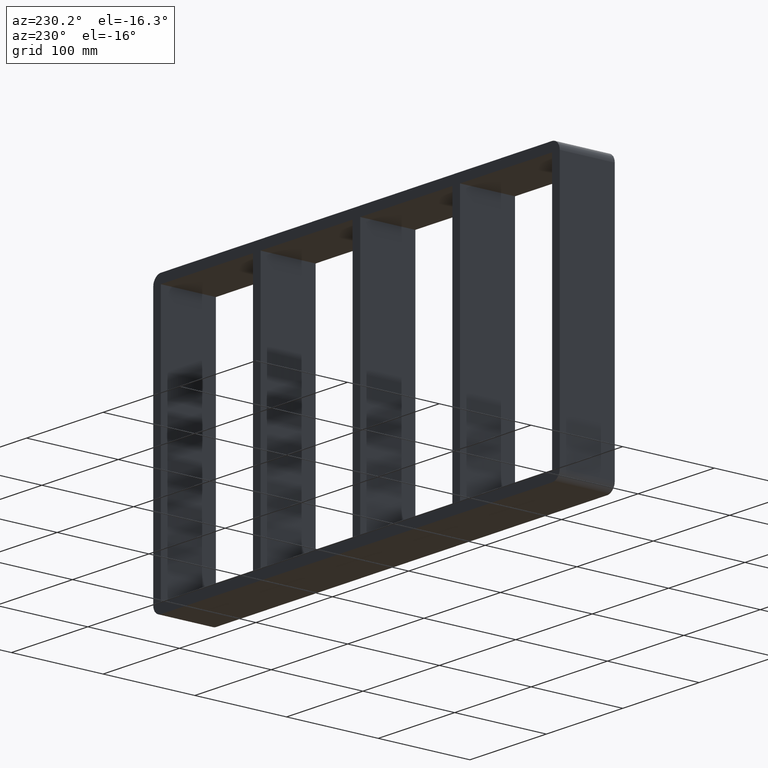
[diagram: clean part render]
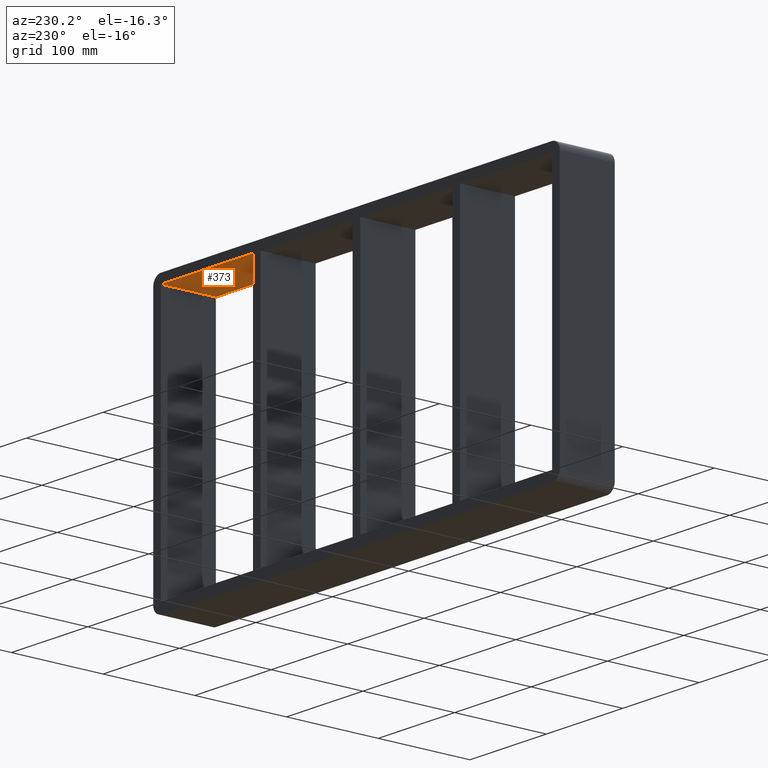
[diagram: same view with one face highlighted and labeled with its STEP entity id]
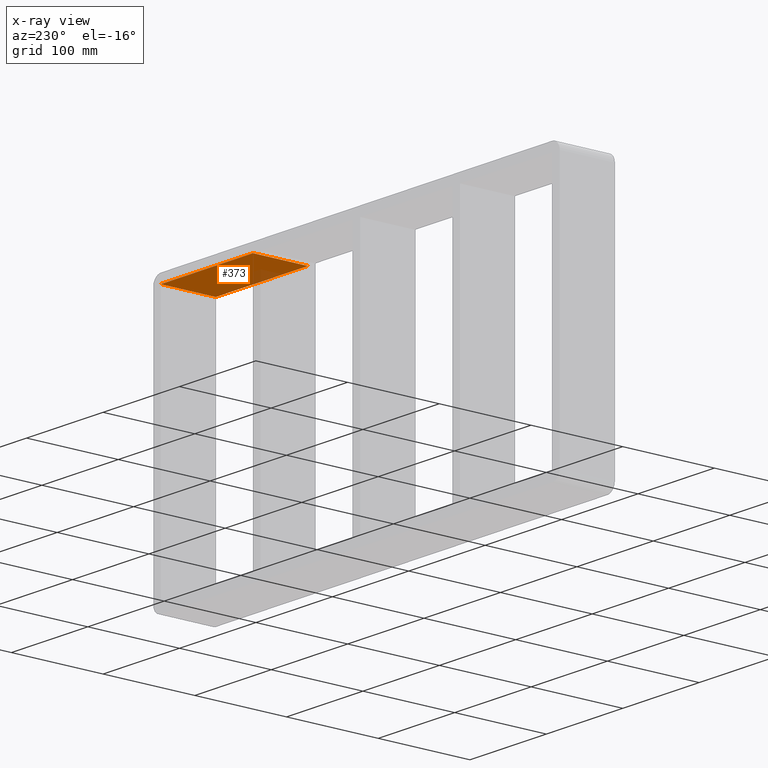
[diagram: x-ray of the same camera — body ghosted, the highlighted face saturated]
A machine part, auxiliary view. The second image highlights one B-rep face of the part: STEP entity #373.
The next image is the same camera in x-ray: the body ghosted, the highlighted face saturated — about 8% of this face is hidden behind the body in this view.
In plain terms, the highlighted planar face has unit normal (0, 0, 1).
Its self-contained STEP definition (entity closure, byte-faithful):
#113=CARTESIAN_POINT('',(135.50000000000728,-3.0,139.00000000000003));
#114=VERTEX_POINT('',#113);
#131=CARTESIAN_POINT('',(135.50000000000728,57.0,139.00000000000003));
#132=VERTEX_POINT('',#131);
#139=CARTESIAN_POINT('',(135.50000000000728,-3.0,139.00000000000003));
#140=DIRECTION('',(0.0,1.0,0.0));
#141=VECTOR('',#140,60.000000000000007);
#142=LINE('',#139,#141);
#143=EDGE_CURVE('',#114,#132,#142,.T.);
#343=CARTESIAN_POINT('',(-256.0,0.0,139.00000000000003));
#344=DIRECTION('',(0.0,0.0,1.0));
#345=DIRECTION('',(1.0,0.0,0.0));
#346=AXIS2_PLACEMENT_3D('',#343,#344,#345);
#347=PLANE('',#346);
#348=ORIENTED_EDGE('',*,*,#143,.T.);
#349=CARTESIAN_POINT('',(256.00000000000006,57.0,139.00000000000003));
#350=VERTEX_POINT('',#349);
#351=CARTESIAN_POINT('',(256.00000000000006,57.0,139.00000000000003));
#352=DIRECTION('',(-1.0,0.0,0.0));
#353=VECTOR('',#352,120.49999999999278);
#354=LINE('',#351,#353);
#355=EDGE_CURVE('',#350,#132,#354,.T.);
#356=ORIENTED_EDGE('',*,*,#355,.F.);
#357=CARTESIAN_POINT('',(256.00000000000006,-3.0,139.00000000000003));
#358=VERTEX_POINT('',#357);
#359=CARTESIAN_POINT('',(256.00000000000006,-3.0,139.00000000000003));
#360=DIRECTION('',(0.0,1.0,0.0));
#361=VECTOR('',#360,60.0);
#362=LINE('',#359,#361);
#363=EDGE_CURVE('',#358,#350,#362,.T.);
#364=ORIENTED_EDGE('',*,*,#363,.F.);
#365=CARTESIAN_POINT('',(135.50000000000728,-3.0,139.00000000000003));
#366=DIRECTION('',(1.0,0.0,0.0));
#367=VECTOR('',#366,120.49999999999278);
#368=LINE('',#365,#367);
#369=EDGE_CURVE('',#114,#358,#368,.T.);
#370=ORIENTED_EDGE('',*,*,#369,.F.);
#371=EDGE_LOOP('',(#348,#356,#364,#370));
#372=FACE_OUTER_BOUND('',#371,.T.);
#373=ADVANCED_FACE('',(#372),#347,.F.);